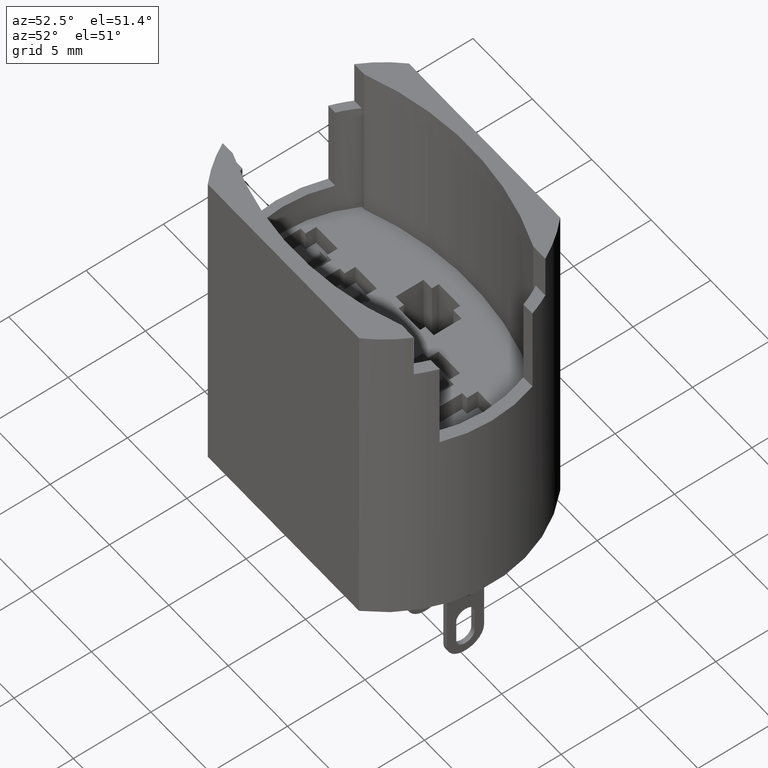
[diagram: clean part render]
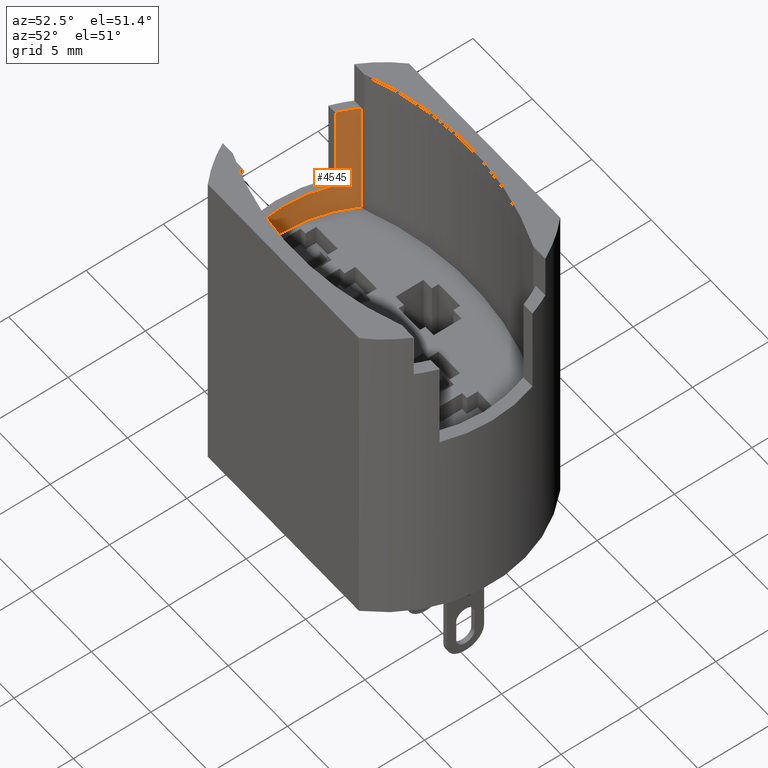
[diagram: same view with one face highlighted and labeled with its STEP entity id]
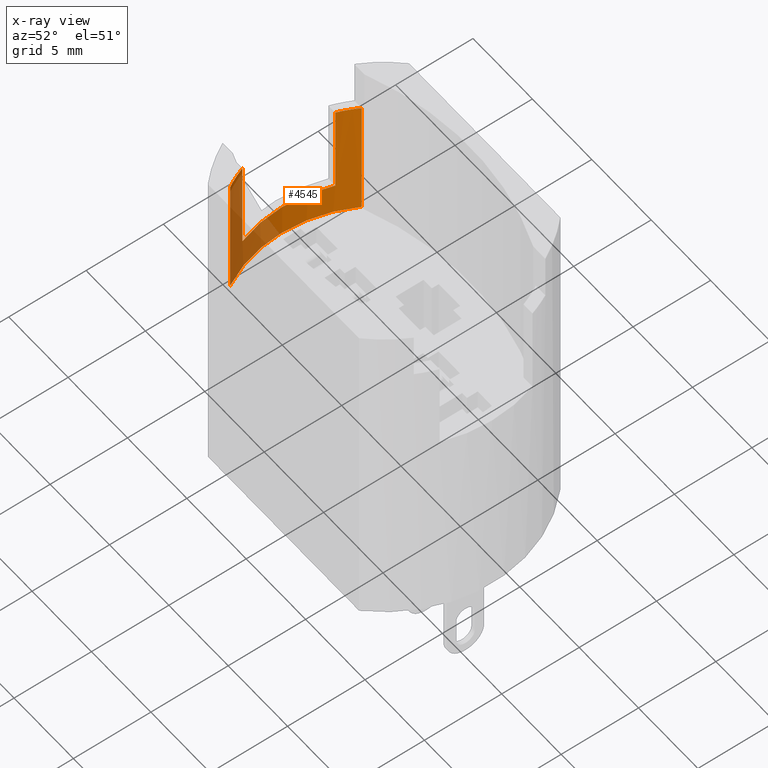
[diagram: x-ray of the same camera — body ghosted, the highlighted face saturated]
A machine part, auxiliary view. The second image highlights one B-rep face of the part: STEP entity #4545.
The next image is the same camera in x-ray: the body ghosted, the highlighted face saturated — about 32% of this face is hidden behind the body in this view.
In plain terms, the highlighted cylindrical surface (partial cylindrical patch) has radius 8.475 mm, axis along (0, 0, -1).
Its self-contained STEP definition (entity closure, byte-faithful):
#71=CYLINDRICAL_SURFACE('',#4854,8.475);
#139=CIRCLE('',#4818,8.475);
#143=CIRCLE('',#4824,8.475);
#147=CIRCLE('',#4831,8.475);
#160=CIRCLE('',#4855,8.475);
#381=FACE_OUTER_BOUND('',#620,.T.);
#620=EDGE_LOOP('',(#3925,#3926,#3927,#3928,#3929,#3930,#3931,#3932));
#1167=LINE('',#7224,#1739);
#1178=LINE('',#7263,#1750);
#1204=LINE('',#7342,#1776);
#1207=LINE('',#7347,#1779);
#1739=VECTOR('',#5897,10.);
#1750=VECTOR('',#5936,10.);
#1776=VECTOR('',#6012,10.);
#1779=VECTOR('',#6017,10.);
#2163=VERTEX_POINT('',#7221);
#2164=VERTEX_POINT('',#7223);
#2170=VERTEX_POINT('',#7238);
#2174=VERTEX_POINT('',#7250);
#2178=VERTEX_POINT('',#7262);
#2180=VERTEX_POINT('',#7268);
#2206=VERTEX_POINT('',#7341);
#2207=VERTEX_POINT('',#7346);
#2775=EDGE_CURVE('',#2164,#2163,#1167,.T.);
#2783=EDGE_CURVE('',#2163,#2170,#139,.T.);
#2788=EDGE_CURVE('',#2174,#2164,#143,.T.);
#2794=EDGE_CURVE('',#2178,#2174,#1178,.T.);
#2797=EDGE_CURVE('',#2180,#2178,#147,.T.);
#2834=EDGE_CURVE('',#2180,#2206,#1204,.T.);
#2837=EDGE_CURVE('',#2170,#2207,#1207,.T.);
#2838=EDGE_CURVE('',#2207,#2206,#160,.T.);
#3925=ORIENTED_EDGE('',*,*,#2783,.T.);
#3926=ORIENTED_EDGE('',*,*,#2837,.T.);
#3927=ORIENTED_EDGE('',*,*,#2838,.T.);
#3928=ORIENTED_EDGE('',*,*,#2834,.F.);
#3929=ORIENTED_EDGE('',*,*,#2797,.T.);
#3930=ORIENTED_EDGE('',*,*,#2794,.T.);
#3931=ORIENTED_EDGE('',*,*,#2788,.T.);
#3932=ORIENTED_EDGE('',*,*,#2775,.T.);
#4545=ADVANCED_FACE('',(#381),#71,.F.);
#4818=AXIS2_PLACEMENT_3D('',#7240,#5910,#5911);
#4824=AXIS2_PLACEMENT_3D('',#7251,#5923,#5924);
#4831=AXIS2_PLACEMENT_3D('',#7269,#5942,#5943);
#4854=AXIS2_PLACEMENT_3D('',#7345,#6015,#6016);
#4855=AXIS2_PLACEMENT_3D('',#7348,#6018,#6019);
#5897=DIRECTION('',(-2.01228126592556E-16,-3.88578058618806E-16,1.));
#5910=DIRECTION('center_axis',(-2.01228126592556E-16,-3.88578058618806E-16,
1.));
#5911=DIRECTION('ref_axis',(-0.865172178435516,-0.501474926253689,-3.68959129936247E-16));
#5923=DIRECTION('center_axis',(-2.01228126592556E-16,-3.88578058618806E-16,
1.));
#5924=DIRECTION('ref_axis',(-0.865172178435516,-0.501474926253689,-3.68959129936247E-16));
#5936=DIRECTION('',(2.01228126592556E-16,3.88578058618806E-16,-1.));
#5942=DIRECTION('center_axis',(-2.01228126592556E-16,-3.88578058618806E-16,
1.));
#5943=DIRECTION('ref_axis',(-0.865172178435516,-0.501474926253689,-3.68959129936247E-16));
#6012=DIRECTION('',(2.01228126592556E-16,3.88578058618806E-16,-1.));
#6015=DIRECTION('center_axis',(2.01228126592556E-16,3.88578058618806E-16,
-1.));
#6016=DIRECTION('ref_axis',(-0.865172178435516,-0.501474926253689,-3.68959129936247E-16));
#6017=DIRECTION('',(2.01228126592556E-16,3.88578058618806E-16,-1.));
#6018=DIRECTION('center_axis',(2.01228126592556E-16,3.88578058618806E-16,
-1.));
#6019=DIRECTION('ref_axis',(-0.865172178435516,-0.501474926253689,-3.68959129936247E-16));
#7221=CARTESIAN_POINT('',(-7.92626172921384,-3.00000000000003,19.4));
#7223=CARTESIAN_POINT('',(-7.92626172921384,-3.00000000000002,13.4));
#7224=CARTESIAN_POINT('',(-7.92626172921384,-3.00000000000003,22.4));
#7238=CARTESIAN_POINT('',(-7.33233421224101,-4.25000000000002,19.4));
#7240=CARTESIAN_POINT('Origin',(-3.90382565589558E-15,-7.53841433720483E-15,
19.4));
#7250=CARTESIAN_POINT('',(-7.92626172921385,2.99999999999998,13.4));
#7251=CARTESIAN_POINT('Origin',(-2.69645689634024E-15,-5.206945985492E-15,
13.4));
#7262=CARTESIAN_POINT('',(-7.92626172921385,2.99999999999997,19.4));
#7263=CARTESIAN_POINT('',(-7.92626172921385,2.99999999999997,22.4));
#7268=CARTESIAN_POINT('',(-7.33233421224102,4.24999999999998,19.4));
#7269=CARTESIAN_POINT('Origin',(-3.90382565589558E-15,-7.53841433720483E-15,
19.4));
#7341=CARTESIAN_POINT('',(-7.33233421224102,4.24999999999998,11.3));
#7342=CARTESIAN_POINT('',(-7.33233421224102,4.24999999999997,22.4));
#7345=CARTESIAN_POINT('Origin',(-4.50751003567325E-15,-8.70414851306125E-15,
22.4));
#7346=CARTESIAN_POINT('',(-7.332334212241,-4.25000000000002,11.3));
#7347=CARTESIAN_POINT('',(-7.332334212241,-4.25000000000002,22.4));
#7348=CARTESIAN_POINT('Origin',(-2.27387783049588E-15,-4.39093206239251E-15,
11.3));